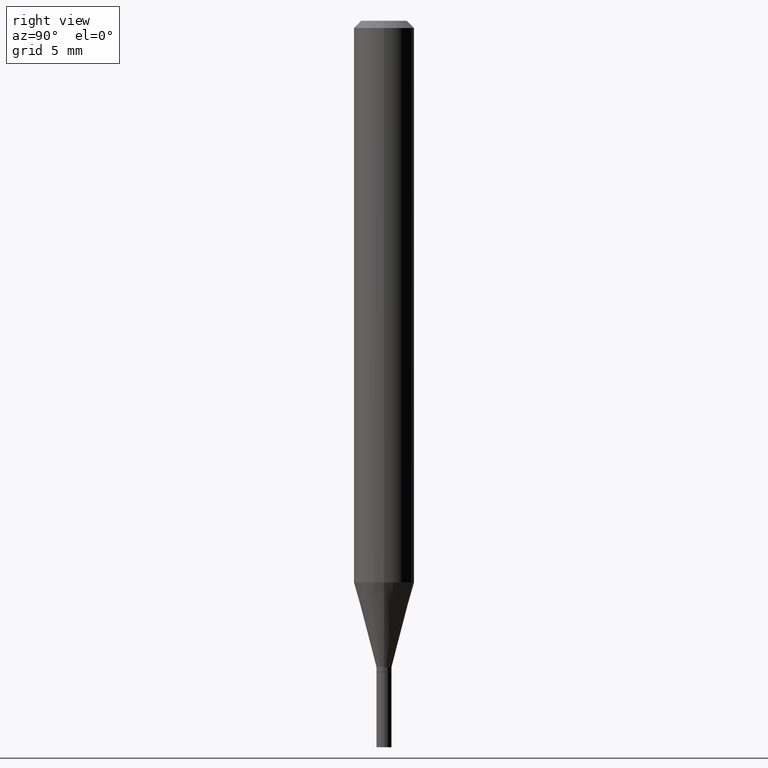
[diagram: clean part render]
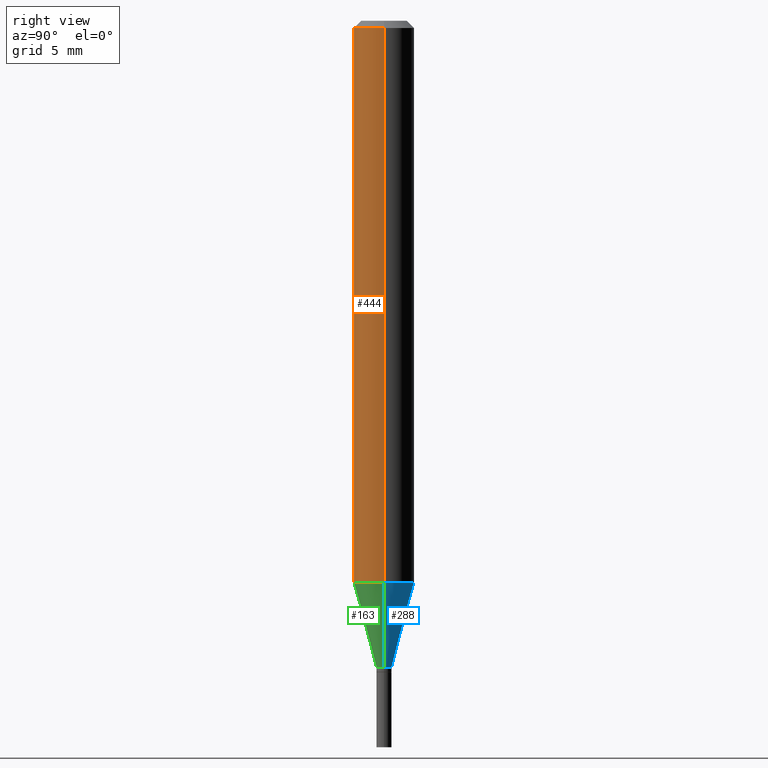
[diagram: same view with three faces highlighted in distinct colors, each labeled with its STEP entity id]
A machine part, right view with three faces highlighted in distinct colors.
Their STEP definitions:

[orange] entity #444 — the highlighted cylindrical surface (edge-blend (fillet) strip) has radius 1.5875 mm, axis along (-0, 0, 1).
#2 = AXIS2_PLACEMENT_3D ( 'NONE', #4, #323, #365 ) ;
#4 = CARTESIAN_POINT ( 'NONE',  ( 2.835750006105794188E-29, -4.048699457094262209E-15, -1.159593612044262922 ) ) ;
#17 = DIRECTION ( 'NONE',  ( -2.445468806185136877E-29, 3.491481338843145188E-15, 1.000000000000000000 ) ) ;
#34 = CARTESIAN_POINT ( 'NONE',  ( 0.000000000000000000, 0.000000000000000000, 0.000000000000000000 ) ) ;
#41 = EDGE_CURVE ( 'NONE', #64, #452, #169, .T. ) ;
#48 = VECTOR ( 'NONE', #262, 39.37007874015748143 ) ;
#56 = CARTESIAN_POINT ( 'NONE',  ( -0.06250000000000000000, -1.606446628738392225E-15, -0.01499999999999999944 ) ) ;
#64 = VERTEX_POINT ( 'NONE', #374 ) ;
#81 = VERTEX_POINT ( 'NONE', #56 ) ;
#106 = AXIS2_PLACEMENT_3D ( 'NONE', #34, #423, #277 ) ;
#116 = EDGE_CURVE ( 'NONE', #176, #64, #440, .T. ) ;
#117 = CARTESIAN_POINT ( 'NONE',  ( -0.06250000000000000000, 4.440892098500626162E-16, -3.074334431409316114E-30 ) ) ;
#169 = LINE ( 'NONE', #384, #48 ) ;
#176 = VERTEX_POINT ( 'NONE', #291 ) ;
#200 = DIRECTION ( 'NONE',  ( -2.445468806185136597E-29, 3.491481338843145583E-15, 1.000000000000000000 ) ) ;
#217 = CARTESIAN_POINT ( 'NONE',  ( 0.06250000000000000000, -4.888073874380388472E-16, -0.01499999999999999944 ) ) ;
#239 = EDGE_LOOP ( 'NONE', ( #345, #422, #303, #271 ) ) ;
#249 = DIRECTION ( 'NONE',  ( 1.000000000000000000, -6.982962677686266711E-15, 0.000000000000000000 ) ) ;
#262 = DIRECTION ( 'NONE',  ( -2.445468806185136877E-29, 3.491481338843145188E-15, 1.000000000000000000 ) ) ;
#269 = EDGE_CURVE ( 'NONE', #176, #81, #330, .T. ) ;
#271 = ORIENTED_EDGE ( 'NONE', *, *, #399, .F. ) ;
#275 = FACE_OUTER_BOUND ( 'NONE', #239, .T. ) ;
#277 = DIRECTION ( 'NONE',  ( 1.000000000000000000, -6.982962677686266711E-15, 4.876176775795935793E-29 ) ) ;
#291 = CARTESIAN_POINT ( 'NONE',  ( -0.06250000000000000000, -3.604610247244199593E-15, -1.159593612044262922 ) ) ;
#294 = CIRCLE ( 'NONE', #412, 0.06250000000000000000 ) ;
#303 = ORIENTED_EDGE ( 'NONE', *, *, #41, .T. ) ;
#323 = DIRECTION ( 'NONE',  ( -2.445468806185136597E-29, 3.491481338843145583E-15, 1.000000000000000000 ) ) ;
#330 = LINE ( 'NONE', #117, #404 ) ;
#345 = ORIENTED_EDGE ( 'NONE', *, *, #269, .F. ) ;
#365 = DIRECTION ( 'NONE',  ( 1.000000000000000000, -6.982962677686262766E-15, 0.000000000000000000 ) ) ;
#374 = CARTESIAN_POINT ( 'NONE',  ( 0.06250000000000000000, -4.485134624449653879E-15, -1.159593612044262922 ) ) ;
#384 = CARTESIAN_POINT ( 'NONE',  ( 0.06250000000000000000, -4.364351673553916694E-16, 3.047610484872459871E-30 ) ) ;
#395 = CYLINDRICAL_SURFACE ( 'NONE', #106, 0.06250000000000000000 ) ;
#399 = EDGE_CURVE ( 'NONE', #81, #452, #294, .T. ) ;
#404 = VECTOR ( 'NONE', #17, 39.37007874015748143 ) ;
#412 = AXIS2_PLACEMENT_3D ( 'NONE', #443, #200, #249 ) ;
#422 = ORIENTED_EDGE ( 'NONE', *, *, #116, .T. ) ;
#423 = DIRECTION ( 'NONE',  ( -2.445468806185136597E-29, 3.491481338843145583E-15, 1.000000000000000000 ) ) ;
#440 = CIRCLE ( 'NONE', #2, 0.06250000000000000000 ) ;
#443 = CARTESIAN_POINT ( 'NONE',  ( 3.668203209277705088E-31, -5.237222008264718399E-17, -0.01499999999999999944 ) ) ;
#444 = ADVANCED_FACE ( 'NONE', ( #275 ), #395, .T. ) ;
#452 = VERTEX_POINT ( 'NONE', #217 ) ;

[blue] entity #288 — the highlighted conical surface has half-angle 15 deg.
#18 = AXIS2_PLACEMENT_3D ( 'NONE', #100, #30, #40 ) ;
#28 = DIRECTION ( 'NONE',  ( 1.000000000000000000, -6.982962677686262766E-15, 0.000000000000000000 ) ) ;
#30 = DIRECTION ( 'NONE',  ( -2.445468806185136597E-29, 3.491481338843145583E-15, 1.000000000000000000 ) ) ;
#38 = CARTESIAN_POINT ( 'NONE',  ( 0.01549999999999991836, -4.769363508859736288E-15, -1.335000000000000187 ) ) ;
#40 = DIRECTION ( 'NONE',  ( 1.000000000000000000, -6.982962677686275388E-15, 0.000000000000000000 ) ) ;
#47 = DIRECTION ( 'NONE',  ( 1.000000000000000000, -6.982962677686275388E-15, 0.000000000000000000 ) ) ;
#64 = VERTEX_POINT ( 'NONE', #374 ) ;
#71 = DIRECTION ( 'NONE',  ( 0.2588190451025212391, 1.565188264969622362E-15, 0.9659258262890679791 ) ) ;
#93 = CARTESIAN_POINT ( 'NONE',  ( 3.264700856257157760E-29, -4.661127587355599122E-15, -1.335000000000000187 ) ) ;
#100 = CARTESIAN_POINT ( 'NONE',  ( 3.264700856257157760E-29, -4.661127587355599122E-15, -1.335000000000000187 ) ) ;
#101 = EDGE_LOOP ( 'NONE', ( #402, #102, #123, #457 ) ) ;
#102 = ORIENTED_EDGE ( 'NONE', *, *, #107, .T. ) ;
#107 = EDGE_CURVE ( 'NONE', #139, #176, #314, .T. ) ;
#120 = CIRCLE ( 'NONE', #389, 0.06250000000000000000 ) ;
#123 = ORIENTED_EDGE ( 'NONE', *, *, #205, .F. ) ;
#139 = VERTEX_POINT ( 'NONE', #317 ) ;
#140 = LINE ( 'NONE', #38, #358 ) ;
#157 = AXIS2_PLACEMENT_3D ( 'NONE', #93, #449, #47 ) ;
#176 = VERTEX_POINT ( 'NONE', #291 ) ;
#184 = CONICAL_SURFACE ( 'NONE', #157, 0.01549999999999991836, 0.2617993877991499629 ) ;
#196 = DIRECTION ( 'NONE',  ( -2.445468806185136597E-29, 3.491481338843145583E-15, 1.000000000000000000 ) ) ;
#205 = EDGE_CURVE ( 'NONE', #64, #176, #120, .T. ) ;
#220 = CIRCLE ( 'NONE', #18, 0.01549999999999991836 ) ;
#226 = CARTESIAN_POINT ( 'NONE',  ( 0.01549999999999991836, -4.769363508859736288E-15, -1.335000000000000187 ) ) ;
#288 = ADVANCED_FACE ( 'NONE', ( #333 ), #184, .T. ) ;
#291 = CARTESIAN_POINT ( 'NONE',  ( -0.06250000000000000000, -3.604610247244199593E-15, -1.159593612044262922 ) ) ;
#304 = CARTESIAN_POINT ( 'NONE',  ( 2.835750006105794188E-29, -4.048699457094262209E-15, -1.159593612044262922 ) ) ;
#314 = LINE ( 'NONE', #387, #332 ) ;
#317 = CARTESIAN_POINT ( 'NONE',  ( -0.01549999999999991836, -4.077801855278492136E-15, -1.335000000000000187 ) ) ;
#332 = VECTOR ( 'NONE', #350, 39.37007874015748854 ) ;
#333 = FACE_OUTER_BOUND ( 'NONE', #101, .T. ) ;
#350 = DIRECTION ( 'NONE',  ( -0.2588190451025212391, 5.211531920934549464E-15, 0.9659258262890679791 ) ) ;
#358 = VECTOR ( 'NONE', #71, 39.37007874015748854 ) ;
#374 = CARTESIAN_POINT ( 'NONE',  ( 0.06250000000000000000, -4.485134624449653879E-15, -1.159593612044262922 ) ) ;
#387 = CARTESIAN_POINT ( 'NONE',  ( -0.01549999999999991836, -4.550993463312784679E-15, -1.335000000000000187 ) ) ;
#389 = AXIS2_PLACEMENT_3D ( 'NONE', #304, #196, #28 ) ;
#391 = VERTEX_POINT ( 'NONE', #226 ) ;
#402 = ORIENTED_EDGE ( 'NONE', *, *, #466, .T. ) ;
#431 = EDGE_CURVE ( 'NONE', #391, #64, #140, .T. ) ;
#449 = DIRECTION ( 'NONE',  ( -2.445468806185136597E-29, 3.491481338843145583E-15, 1.000000000000000000 ) ) ;
#457 = ORIENTED_EDGE ( 'NONE', *, *, #431, .F. ) ;
#466 = EDGE_CURVE ( 'NONE', #391, #139, #220, .T. ) ;

[green] entity #163 — the highlighted conical surface has half-angle 15 deg.
#2 = AXIS2_PLACEMENT_3D ( 'NONE', #4, #323, #365 ) ;
#4 = CARTESIAN_POINT ( 'NONE',  ( 2.835750006105794188E-29, -4.048699457094262209E-15, -1.159593612044262922 ) ) ;
#6 = DIRECTION ( 'NONE',  ( -2.445468806185136597E-29, 3.491481338843145583E-15, 1.000000000000000000 ) ) ;
#36 = ORIENTED_EDGE ( 'NONE', *, *, #431, .T. ) ;
#38 = CARTESIAN_POINT ( 'NONE',  ( 0.01549999999999991836, -4.769363508859736288E-15, -1.335000000000000187 ) ) ;
#55 = EDGE_CURVE ( 'NONE', #139, #391, #85, .T. ) ;
#60 = DIRECTION ( 'NONE',  ( 1.000000000000000000, -6.982962677686275388E-15, 0.000000000000000000 ) ) ;
#64 = VERTEX_POINT ( 'NONE', #374 ) ;
#71 = DIRECTION ( 'NONE',  ( 0.2588190451025212391, 1.565188264969622362E-15, 0.9659258262890679791 ) ) ;
#85 = CIRCLE ( 'NONE', #192, 0.01549999999999991836 ) ;
#92 = CARTESIAN_POINT ( 'NONE',  ( 3.264700856257157760E-29, -4.661127587355599122E-15, -1.335000000000000187 ) ) ;
#107 = EDGE_CURVE ( 'NONE', #139, #176, #314, .T. ) ;
#115 = AXIS2_PLACEMENT_3D ( 'NONE', #320, #6, #436 ) ;
#116 = EDGE_CURVE ( 'NONE', #176, #64, #440, .T. ) ;
#139 = VERTEX_POINT ( 'NONE', #317 ) ;
#140 = LINE ( 'NONE', #38, #358 ) ;
#144 = FACE_OUTER_BOUND ( 'NONE', #427, .T. ) ;
#152 = DIRECTION ( 'NONE',  ( -2.445468806185136597E-29, 3.491481338843145583E-15, 1.000000000000000000 ) ) ;
#163 = ADVANCED_FACE ( 'NONE', ( #144 ), #352, .T. ) ;
#176 = VERTEX_POINT ( 'NONE', #291 ) ;
#192 = AXIS2_PLACEMENT_3D ( 'NONE', #92, #152, #60 ) ;
#226 = CARTESIAN_POINT ( 'NONE',  ( 0.01549999999999991836, -4.769363508859736288E-15, -1.335000000000000187 ) ) ;
#280 = ORIENTED_EDGE ( 'NONE', *, *, #116, .F. ) ;
#291 = CARTESIAN_POINT ( 'NONE',  ( -0.06250000000000000000, -3.604610247244199593E-15, -1.159593612044262922 ) ) ;
#314 = LINE ( 'NONE', #387, #332 ) ;
#317 = CARTESIAN_POINT ( 'NONE',  ( -0.01549999999999991836, -4.077801855278492136E-15, -1.335000000000000187 ) ) ;
#320 = CARTESIAN_POINT ( 'NONE',  ( 3.264700856257157760E-29, -4.661127587355599122E-15, -1.335000000000000187 ) ) ;
#323 = DIRECTION ( 'NONE',  ( -2.445468806185136597E-29, 3.491481338843145583E-15, 1.000000000000000000 ) ) ;
#332 = VECTOR ( 'NONE', #350, 39.37007874015748854 ) ;
#350 = DIRECTION ( 'NONE',  ( -0.2588190451025212391, 5.211531920934549464E-15, 0.9659258262890679791 ) ) ;
#352 = CONICAL_SURFACE ( 'NONE', #115, 0.01549999999999991836, 0.2617993877991499629 ) ;
#358 = VECTOR ( 'NONE', #71, 39.37007874015748854 ) ;
#365 = DIRECTION ( 'NONE',  ( 1.000000000000000000, -6.982962677686262766E-15, 0.000000000000000000 ) ) ;
#374 = CARTESIAN_POINT ( 'NONE',  ( 0.06250000000000000000, -4.485134624449653879E-15, -1.159593612044262922 ) ) ;
#375 = ORIENTED_EDGE ( 'NONE', *, *, #107, .F. ) ;
#387 = CARTESIAN_POINT ( 'NONE',  ( -0.01549999999999991836, -4.550993463312784679E-15, -1.335000000000000187 ) ) ;
#391 = VERTEX_POINT ( 'NONE', #226 ) ;
#427 = EDGE_LOOP ( 'NONE', ( #375, #464, #36, #280 ) ) ;
#431 = EDGE_CURVE ( 'NONE', #391, #64, #140, .T. ) ;
#436 = DIRECTION ( 'NONE',  ( 1.000000000000000000, -6.982962677686275388E-15, 0.000000000000000000 ) ) ;
#440 = CIRCLE ( 'NONE', #2, 0.06250000000000000000 ) ;
#464 = ORIENTED_EDGE ( 'NONE', *, *, #55, .T. ) ;